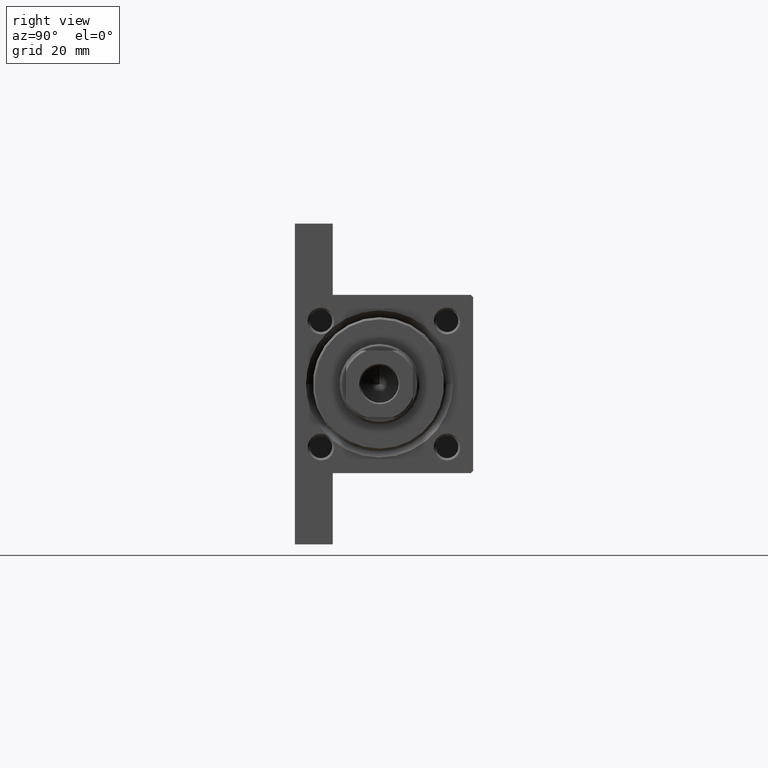
[diagram: clean part render]
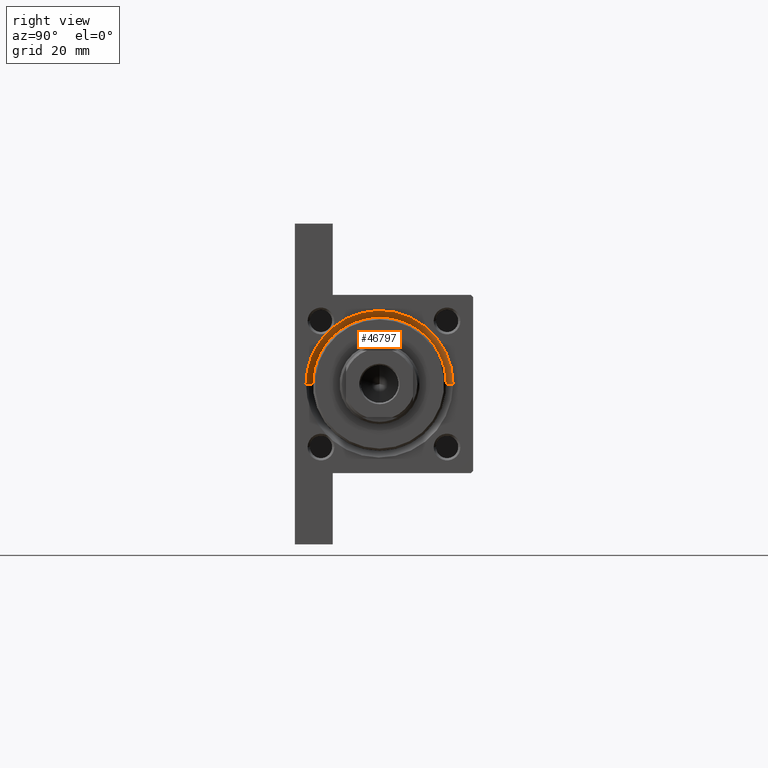
[diagram: same view with one face highlighted and labeled with its STEP entity id]
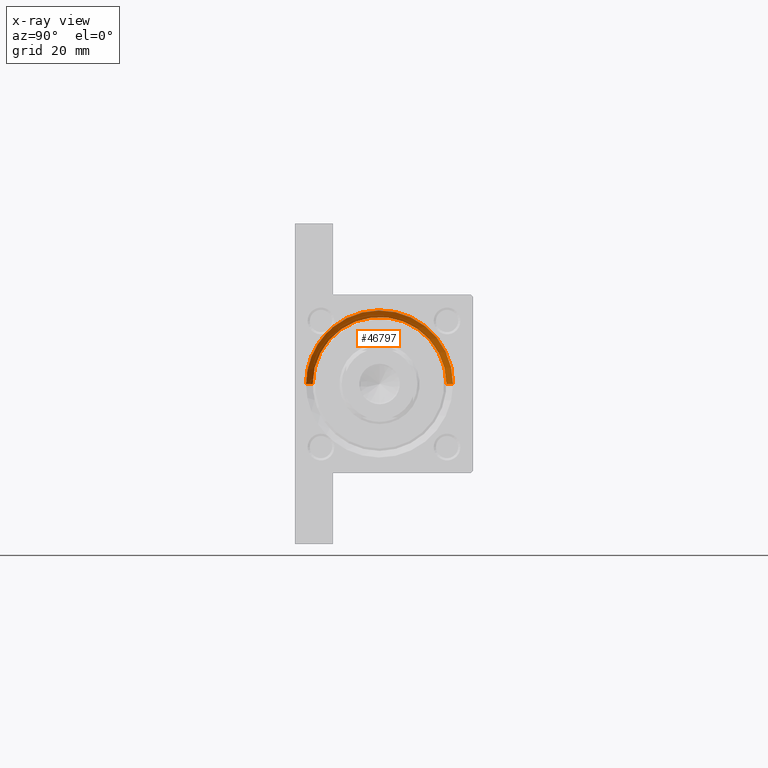
[diagram: x-ray of the same camera — body ghosted, the highlighted face saturated]
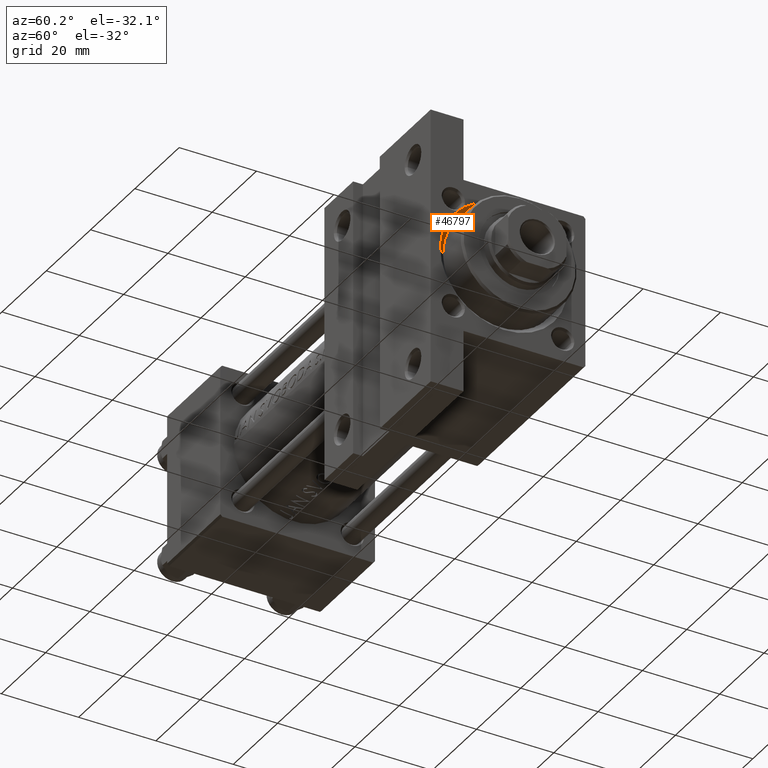
[diagram: same view with one face highlighted and labeled with its STEP entity id]
A machine part, right view. The second image highlights one B-rep face of the part: STEP entity #46797.
The next image is the same camera in x-ray: the body ghosted, the highlighted face saturated — about 0% of this face is hidden behind the body in this view.
A second angle (auxiliary view) of the same face is appended — the face is thin or edge-on in the first view.
In plain terms, the highlighted conical surface has half-angle 45 deg.
Its self-contained STEP definition (entity closure, byte-faithful):
#433 = ORIENTED_EDGE ( 'NONE', *, *, #36782, .T. ) ;
#1374 = CARTESIAN_POINT ( 'NONE',  ( 118.9399059431251260, -12.47044877148109343, -11.71706312667161676 ) ) ;
#2363 = DIRECTION ( 'NONE',  ( 0.000000000000000000, 0.000000000000000000, 1.000000000000000000 ) ) ;
#2975 = CARTESIAN_POINT ( 'NONE',  ( 119.0000000000000142, -11.41741110086830169, -12.91187322606187671 ) ) ;
#3012 = DIRECTION ( 'NONE',  ( 0.000000000000000000, 0.000000000000000000, 1.000000000000000000 ) ) ;
#4587 = VERTEX_POINT ( 'NONE', #22113 ) ;
#5066 = FACE_OUTER_BOUND ( 'NONE', #25099, .T. ) ;
#7106 = AXIS2_PLACEMENT_3D ( 'NONE', #45633, #31470, #2363 ) ;
#7545 = CARTESIAN_POINT ( 'NONE',  ( 119.0000000000000142, 0.000000000000000000, -1.000000000000000888 ) ) ;
#7857 = CIRCLE ( 'NONE', #38481, 16.50000000000001421 ) ;
#10402 = EDGE_CURVE ( 'NONE', #37138, #46644, #38591, .T. ) ;
#10714 = AXIS2_PLACEMENT_3D ( 'NONE', #24391, #42914, #3012 ) ;
#11141 = DIRECTION ( 'NONE',  ( -1.000000000000000000, -0.000000000000000000, -0.000000000000000000 ) ) ;
#11268 = VERTEX_POINT ( 'NONE', #43810 ) ;
#13000 = CIRCLE ( 'NONE', #10714, 15.00000000000000000 ) ;
#13468 = CARTESIAN_POINT ( 'NONE',  ( 119.0000000000000142, 0.000000000000000000, -17.50000000000001421 ) ) ;
#13731 = CONICAL_SURFACE ( 'NONE', #18337, 15.00000000000000000, 0.7853981633974482790 ) ;
#14502 = EDGE_CURVE ( 'NONE', #40423, #4587, #7857, .T. ) ;
#15109 = ORIENTED_EDGE ( 'NONE', *, *, #10402, .F. ) ;
#15655 = CARTESIAN_POINT ( 'NONE',  ( 119.0000000000000142, -12.71526989445523448, -11.51531794627061345 ) ) ;
#16984 = EDGE_CURVE ( 'NONE', #11268, #24247, #13000, .T. ) ;
#18337 = AXIS2_PLACEMENT_3D ( 'NONE', #22606, #19470, #18754 ) ;
#18609 = CARTESIAN_POINT ( 'NONE',  ( 117.5000000000000000, 0.000000000000000000, -16.00000000000000000 ) ) ;
#18754 = DIRECTION ( 'NONE',  ( 0.000000000000000000, 0.000000000000000000, -1.000000000000000000 ) ) ;
#19310 = LINE ( 'NONE', #34028, #35109 ) ;
#19470 = DIRECTION ( 'NONE',  ( 1.000000000000000000, 0.000000000000000000, 0.000000000000000000 ) ) ;
#19848 = CARTESIAN_POINT ( 'NONE',  ( 119.0000000000000142, -12.71526989445523448, -11.51531794627061345 ) ) ;
#21206 = CARTESIAN_POINT ( 'NONE',  ( 118.9086984327258136, -12.23895966654462875, -11.93411783727694520 ) ) ;
#22113 = CARTESIAN_POINT ( 'NONE',  ( 119.0000000000000142, 2.020667218593134678E-15, 15.50000000000001421 ) ) ;
#22206 = DIRECTION ( 'NONE',  ( 0.000000000000000000, 0.000000000000000000, 1.000000000000000000 ) ) ;
#22606 = CARTESIAN_POINT ( 'NONE',  ( 117.5000000000000000, 0.000000000000000000, -1.000000000000000888 ) ) ;
#23147 = ORIENTED_EDGE ( 'NONE', *, *, #14502, .F. ) ;
#24247 = VERTEX_POINT ( 'NONE', #18609 ) ;
#24391 = CARTESIAN_POINT ( 'NONE',  ( 117.5000000000000000, 0.000000000000000000, -1.000000000000000888 ) ) ;
#25099 = EDGE_LOOP ( 'NONE', ( #30280, #433, #23147, #42015, #15109, #27897 ) ) ;
#27897 = ORIENTED_EDGE ( 'NONE', *, *, #42013, .F. ) ;
#29484 = LINE ( 'NONE', #36217, #32803 ) ;
#29764 = EDGE_CURVE ( 'NONE', #40423, #46644, #35787, .T. ) ;
#30280 = ORIENTED_EDGE ( 'NONE', *, *, #16984, .F. ) ;
#30655 = DIRECTION ( 'NONE',  ( 0.7071067811865474617, 0.000000000000000000, -0.7071067811865474617 ) ) ;
#31470 = DIRECTION ( 'NONE',  ( -1.000000000000000000, -0.000000000000000000, -0.000000000000000000 ) ) ;
#32803 = VECTOR ( 'NONE', #33100, 1000.000000000000114 ) ;
#33100 = DIRECTION ( 'NONE',  ( 0.7071067811865474617, 8.659560562354932858E-17, 0.7071067811865474617 ) ) ;
#34028 = CARTESIAN_POINT ( 'NONE',  ( 117.5000000000000000, 0.000000000000000000, -16.00000000000000000 ) ) ;
#35109 = VECTOR ( 'NONE', #30655, 1000.000000000000114 ) ;
#35787 = B_SPLINE_CURVE_WITH_KNOTS ( 'NONE', 3,
 ( #19848, #1374, #21206, #37922, #42000, #2975 ),
 .UNSPECIFIED., .F., .F.,
 ( 4, 2, 4 ),
 ( 0.000000000000000000, 0.0009549214274699147856, 0.001909842854939829571 ),
 .UNSPECIFIED. ) ;
#36217 = CARTESIAN_POINT ( 'NONE',  ( 117.5000000000000000, 1.836970198721029589E-15, 13.99999999999999822 ) ) ;
#36624 = CARTESIAN_POINT ( 'NONE',  ( 119.0000000000000142, -11.41741110086830169, -12.91187322606187671 ) ) ;
#36782 = EDGE_CURVE ( 'NONE', #11268, #4587, #29484, .T. ) ;
#37138 = VERTEX_POINT ( 'NONE', #13468 ) ;
#37922 = CARTESIAN_POINT ( 'NONE',  ( 118.9082653050944600, -11.80458798180323221, -12.40107693355586882 ) ) ;
#38481 = AXIS2_PLACEMENT_3D ( 'NONE', #7545, #11141, #22206 ) ;
#38591 = CIRCLE ( 'NONE', #7106, 16.50000000000001421 ) ;
#40423 = VERTEX_POINT ( 'NONE', #15655 ) ;
#42000 = CARTESIAN_POINT ( 'NONE',  ( 118.9398626170885933, -11.60083618806273620, -12.65276146536946378 ) ) ;
#42013 = EDGE_CURVE ( 'NONE', #24247, #37138, #19310, .T. ) ;
#42015 = ORIENTED_EDGE ( 'NONE', *, *, #29764, .T. ) ;
#42914 = DIRECTION ( 'NONE',  ( 1.000000000000000000, 0.000000000000000000, 0.000000000000000000 ) ) ;
#43810 = CARTESIAN_POINT ( 'NONE',  ( 117.5000000000000000, 1.836970198721029589E-15, 13.99999999999999822 ) ) ;
#45633 = CARTESIAN_POINT ( 'NONE',  ( 119.0000000000000142, 0.000000000000000000, -1.000000000000000888 ) ) ;
#46644 = VERTEX_POINT ( 'NONE', #36624 ) ;
#46797 = ADVANCED_FACE ( 'NONE', ( #5066 ), #13731, .F. ) ;